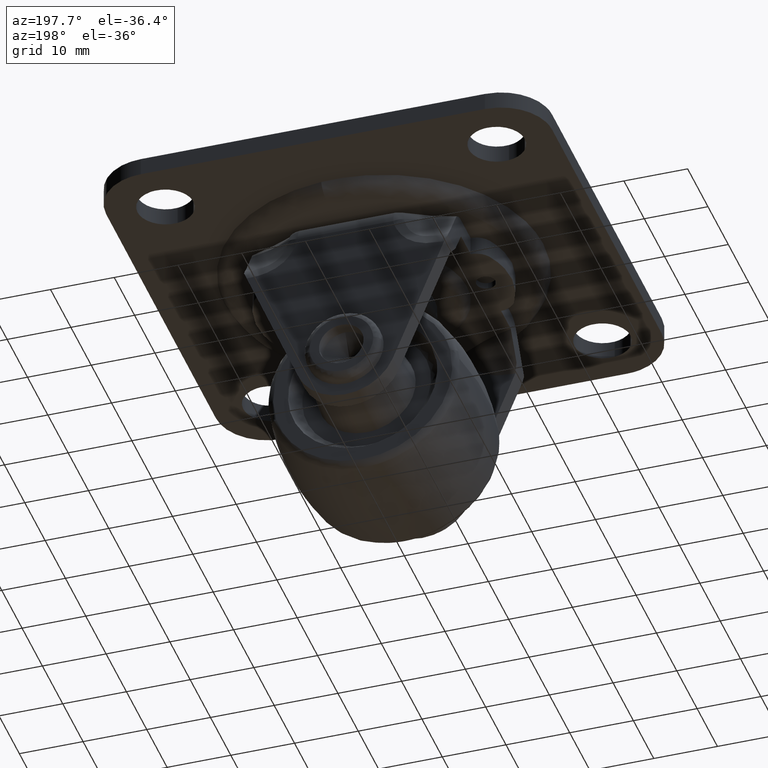
[diagram: clean part render]
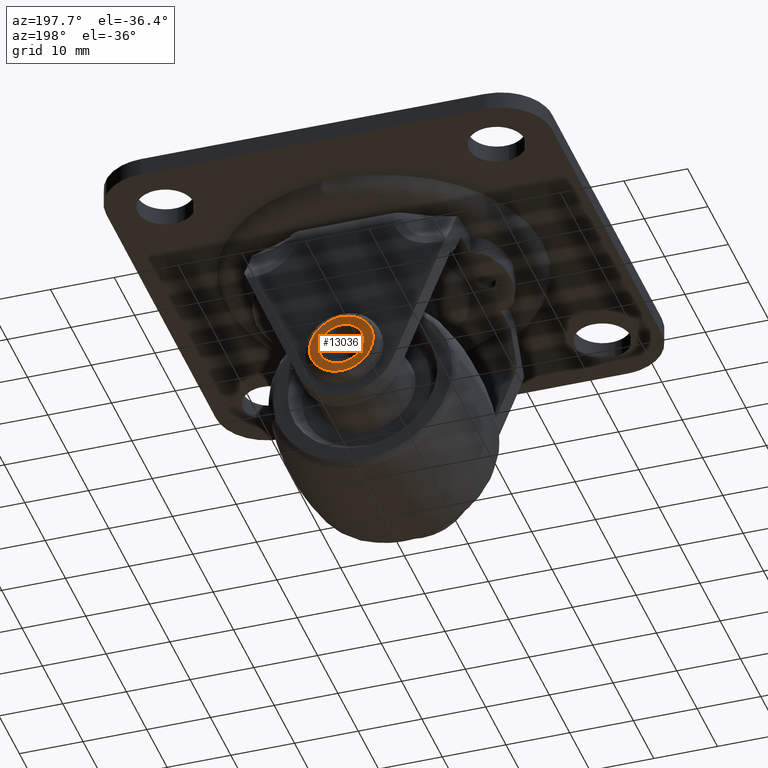
[diagram: same view with one face highlighted and labeled with its STEP entity id]
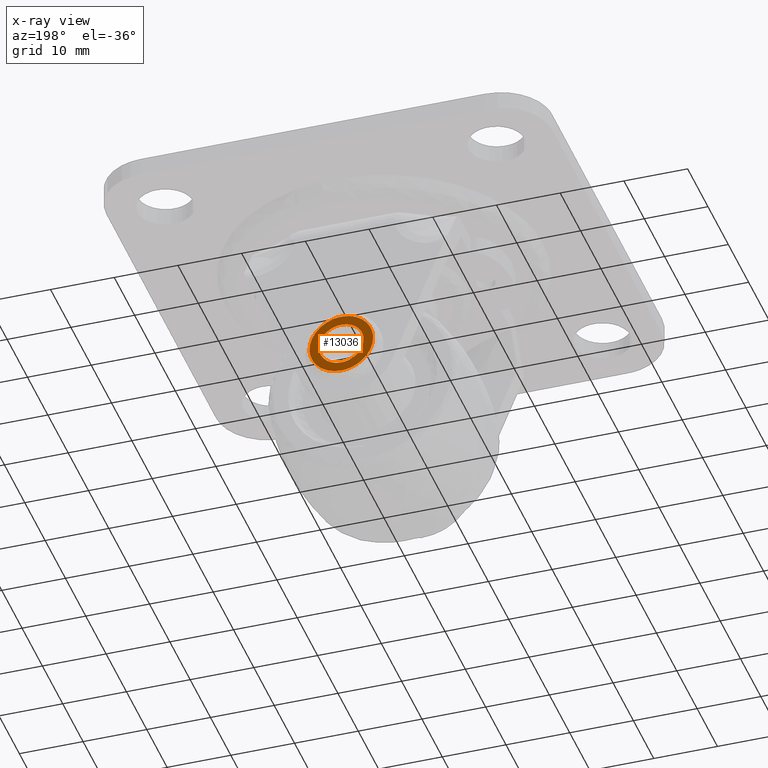
[diagram: x-ray of the same camera — body ghosted, the highlighted face saturated]
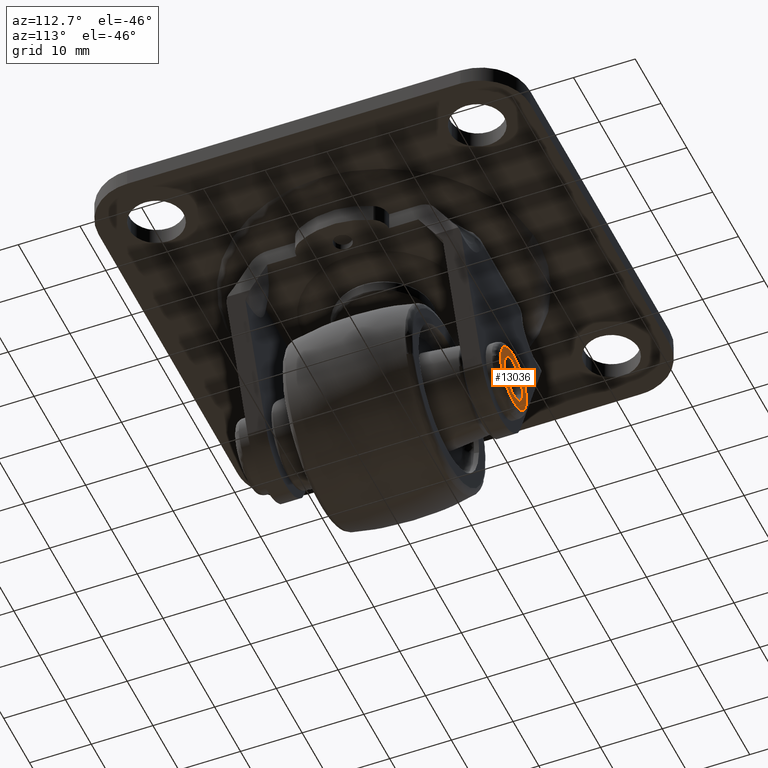
[diagram: same view with one face highlighted and labeled with its STEP entity id]
A machine part, auxiliary view. The second image highlights one B-rep face of the part: STEP entity #13036.
The next image is the same camera in x-ray: the body ghosted, the highlighted face saturated — about 0% of this face is hidden behind the body in this view.
A second angle (auxiliary view) of the same face is appended — the face is thin or edge-on in the first view.
In plain terms, the highlighted face is a freeform B-spline surface patch.
Its self-contained STEP definition (entity closure, byte-faithful):
#11857=CARTESIAN_POINT('',(-3.493471794465455,21.0,0.213669888553150));
#11858=VERTEX_POINT('',#11857);
#11864=CARTESIAN_POINT('',(0.0,21.0,3.500000000000001));
#11865=VERTEX_POINT('',#11864);
#11866=CARTESIAN_POINT('',(0.0,21.0,3.500000000000001));
#11867=CARTESIAN_POINT('',(-3.292471233827857,20.999999999999993,3.500000000000002));
#11868=CARTESIAN_POINT('',(-3.493471794465455,21.0,0.213669888553150));
#11876=(BOUNDED_CURVE()B_SPLINE_CURVE(2,(#11866,#11867,#11868),.UNSPECIFIED.,.F.,.U.)B_SPLINE_CURVE_WITH_KNOTS((3,3),(0.500000000000000,0.739332962224075),.UNSPECIFIED.)CURVE()GEOMETRIC_REPRESENTATION_ITEM()RATIONAL_B_SPLINE_CURVE((1.0,0.719603993304129,0.976072041634852))REPRESENTATION_ITEM(''));
#11877=EDGE_CURVE('',#11865,#11858,#11876,.T.);
#11879=CARTESIAN_POINT('',(3.475533342269747,21.0,-0.413119821324609));
#11880=VERTEX_POINT('',#11879);
#11881=CARTESIAN_POINT('',(3.475533342269747,21.0,-0.413119821324609));
#11882=CARTESIAN_POINT('',(3.500000000000000,21.0,-0.207284418807913));
#11883=CARTESIAN_POINT('',(3.500000000000000,21.0,1.469528E-015));
#11884=CARTESIAN_POINT('',(3.500000000000000,21.000000000000007,3.500000000000001));
#11885=CARTESIAN_POINT('',(0.0,21.0,3.500000000000001));
#11893=(BOUNDED_CURVE()B_SPLINE_CURVE(2,(#11881,#11882,#11883,#11884,#11885),.UNSPECIFIED.,.F.,.U.)B_SPLINE_CURVE_WITH_KNOTS((3,2,3),(0.229562473513120,0.250000000000000,0.500000000000000),.UNSPECIFIED.)CURVE()GEOMETRIC_REPRESENTATION_ITEM()RATIONAL_B_SPLINE_CURVE((0.956026754182938,0.976055948330690,1.0,0.707106781186547,1.0))REPRESENTATION_ITEM(''));
#11894=EDGE_CURVE('',#11880,#11865,#11893,.T.);
#11938=CARTESIAN_POINT('',(0.0,21.0,-3.499999999999999));
#11939=VERTEX_POINT('',#11938);
#11940=CARTESIAN_POINT('',(0.0,21.0,-3.499999999999999));
#11941=CARTESIAN_POINT('',(3.108610840783030,20.999999999999996,-3.500000000000000));
#11942=CARTESIAN_POINT('',(3.475533342269748,21.000000000000004,-0.413119821324608));
#11950=(BOUNDED_CURVE()B_SPLINE_CURVE(2,(#11940,#11941,#11942),.UNSPECIFIED.,.F.,.U.)B_SPLINE_CURVE_WITH_KNOTS((3,3),(0.0,0.229562473513120),.UNSPECIFIED.)CURVE()GEOMETRIC_REPRESENTATION_ITEM()RATIONAL_B_SPLINE_CURVE((1.0,0.731050832855857,0.956026754182938))REPRESENTATION_ITEM(''));
#11951=EDGE_CURVE('',#11939,#11880,#11950,.T.);
#11953=CARTESIAN_POINT('',(-3.493471794465455,20.999999999999996,0.213669888553150));
#11954=CARTESIAN_POINT('',(-3.500000000000000,20.999999999999996,0.106934671726719));
#11955=CARTESIAN_POINT('',(-3.500000000000000,21.0,1.469528E-015));
#11956=CARTESIAN_POINT('',(-3.500000000000000,21.000000000000007,-3.499999999999998));
#11957=CARTESIAN_POINT('',(0.0,21.0,-3.499999999999999));
#11965=(BOUNDED_CURVE()B_SPLINE_CURVE(2,(#11953,#11954,#11955,#11956,#11957),.UNSPECIFIED.,.F.,.U.)B_SPLINE_CURVE_WITH_KNOTS((3,2,3),(0.739332962224074,0.750000000000000,1.0),.UNSPECIFIED.)CURVE()GEOMETRIC_REPRESENTATION_ITEM()RATIONAL_B_SPLINE_CURVE((0.976072041634851,0.987502787882417,1.0,0.707106781186547,1.0))REPRESENTATION_ITEM(''));
#11966=EDGE_CURVE('',#11858,#11939,#11965,.T.);
#12636=CARTESIAN_POINT('',(4.987828217435569,20.999999999999989,-0.348666247640994));
#12637=VERTEX_POINT('',#12636);
#12651=CARTESIAN_POINT('',(0.0,21.0,4.999999842920372));
#12652=VERTEX_POINT('',#12651);
#12653=CARTESIAN_POINT('',(4.987828217435569,20.999999999999989,-0.348666247640994));
#12654=CARTESIAN_POINT('',(4.999999842920370,21.0,-0.174545574262382));
#12655=CARTESIAN_POINT('',(4.999999842920370,21.0,1.469528E-015));
#12656=CARTESIAN_POINT('',(4.999999842920370,21.000000000000004,4.999999842920373));
#12657=CARTESIAN_POINT('',(0.0,21.0,4.999999842920372));
#12665=(BOUNDED_CURVE()B_SPLINE_CURVE(2,(#12653,#12654,#12655,#12656,#12657),.UNSPECIFIED.,.F.,.U.)B_SPLINE_CURVE_WITH_KNOTS((3,2,3),(0.237833686509552,0.250000000000000,0.500000000000000),.UNSPECIFIED.)CURVE()GEOMETRIC_REPRESENTATION_ITEM()RATIONAL_B_SPLINE_CURVE((0.972879876332957,0.985746277122756,1.0,0.707106781186548,1.0))REPRESENTATION_ITEM(''));
#12666=EDGE_CURVE('',#12637,#12652,#12665,.T.);
#12668=CARTESIAN_POINT('',(-4.999605065814077,20.999999999999989,0.062830197545306));
#12669=VERTEX_POINT('',#12668);
#12670=CARTESIAN_POINT('',(0.0,21.0,4.999999842920372));
#12671=CARTESIAN_POINT('',(-4.937559494262539,21.000000000000004,4.999999842920372));
#12672=CARTESIAN_POINT('',(-4.999605065814077,20.999999999999993,0.062830197545306));
#12680=(BOUNDED_CURVE()B_SPLINE_CURVE(2,(#12670,#12671,#12672),.UNSPECIFIED.,.F.,.U.)B_SPLINE_CURVE_WITH_KNOTS((3,3),(0.500000000000000,0.747784295916171),.UNSPECIFIED.)CURVE()GEOMETRIC_REPRESENTATION_ITEM()RATIONAL_B_SPLINE_CURVE((1.0,0.709702639990750,0.994854295631223))REPRESENTATION_ITEM(''));
#12681=EDGE_CURVE('',#12652,#12669,#12680,.T.);
#12727=CARTESIAN_POINT('',(0.0,21.0,-4.999999842920368));
#12728=VERTEX_POINT('',#12727);
#12729=CARTESIAN_POINT('',(-4.999605065814077,20.999999999999993,0.062830197545306));
#12730=CARTESIAN_POINT('',(-4.999999842920369,20.999999999999996,0.031416339051483));
#12731=CARTESIAN_POINT('',(-4.999999842920370,21.0,1.469528E-015));
#12732=CARTESIAN_POINT('',(-4.999999842920370,21.000000000000004,-4.999999842920368));
#12733=CARTESIAN_POINT('',(0.0,21.0,-4.999999842920368));
#12741=(BOUNDED_CURVE()B_SPLINE_CURVE(2,(#12729,#12730,#12731,#12732,#12733),.UNSPECIFIED.,.F.,.U.)B_SPLINE_CURVE_WITH_KNOTS((3,2,3),(0.747784295916171,0.750000000000000,1.0),.UNSPECIFIED.)CURVE()GEOMETRIC_REPRESENTATION_ITEM()RATIONAL_B_SPLINE_CURVE((0.994854295631221,0.997404141195796,1.0,0.707106781186548,1.0))REPRESENTATION_ITEM(''));
#12742=EDGE_CURVE('',#12669,#12728,#12741,.T.);
#12744=CARTESIAN_POINT('',(0.0,21.0,-4.999999842920368));
#12745=CARTESIAN_POINT('',(4.662684089155273,20.999999999999996,-4.999999842920368));
#12746=CARTESIAN_POINT('',(4.987828217435569,20.999999999999993,-0.348666247640994));
#12754=(BOUNDED_CURVE()B_SPLINE_CURVE(2,(#12744,#12745,#12746),.UNSPECIFIED.,.F.,.U.)B_SPLINE_CURVE_WITH_KNOTS((3,3),(0.0,0.237833686509552),.UNSPECIFIED.)CURVE()GEOMETRIC_REPRESENTATION_ITEM()RATIONAL_B_SPLINE_CURVE((1.0,0.721360504063791,0.972879876332956))REPRESENTATION_ITEM(''));
#12755=EDGE_CURVE('',#12728,#12637,#12754,.T.);
#13019=CARTESIAN_POINT('',(-5.499056998728137,21.0,-5.499499995591857));
#13020=CARTESIAN_POINT('',(-5.499056998728136,21.0,5.499500084998825));
#13021=CARTESIAN_POINT('',(5.498881282090824,21.0,-5.499499995591857));
#13022=CARTESIAN_POINT('',(5.498881282090824,21.0,5.499500084998825));
#13023=B_SPLINE_SURFACE_WITH_KNOTS('',1,1,((#13019,#13021),(#13020,#13022)),.UNSPECIFIED.,.F.,.F.,.U.,(2,2),(2,2),(0.0,10.999000080590680),(0.0,10.997938280818961),.UNSPECIFIED.);
#13024=ORIENTED_EDGE('',*,*,#12742,.F.);
#13025=ORIENTED_EDGE('',*,*,#12681,.F.);
#13026=ORIENTED_EDGE('',*,*,#12666,.F.);
#13027=ORIENTED_EDGE('',*,*,#12755,.F.);
#13028=EDGE_LOOP('',(#13024,#13025,#13026,#13027));
#13029=FACE_OUTER_BOUND('',#13028,.T.);
#13030=ORIENTED_EDGE('',*,*,#11877,.T.);
#13031=ORIENTED_EDGE('',*,*,#11966,.T.);
#13032=ORIENTED_EDGE('',*,*,#11951,.T.);
#13033=ORIENTED_EDGE('',*,*,#11894,.T.);
#13034=EDGE_LOOP('',(#13030,#13031,#13032,#13033));
#13035=FACE_BOUND('',#13034,.T.);
#13036=ADVANCED_FACE('',(#13029,#13035),#13023,.T.);